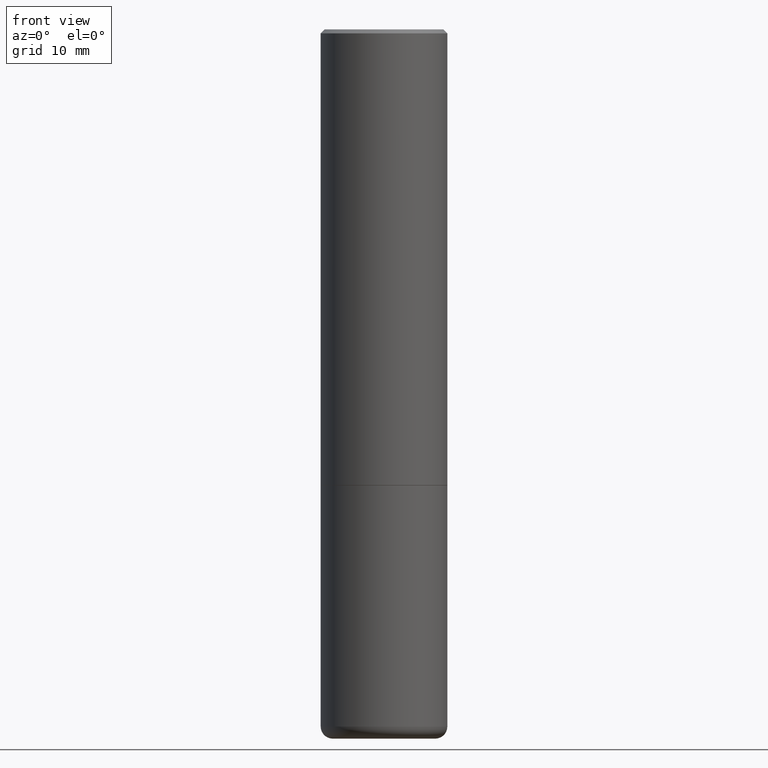
[diagram: clean part render]
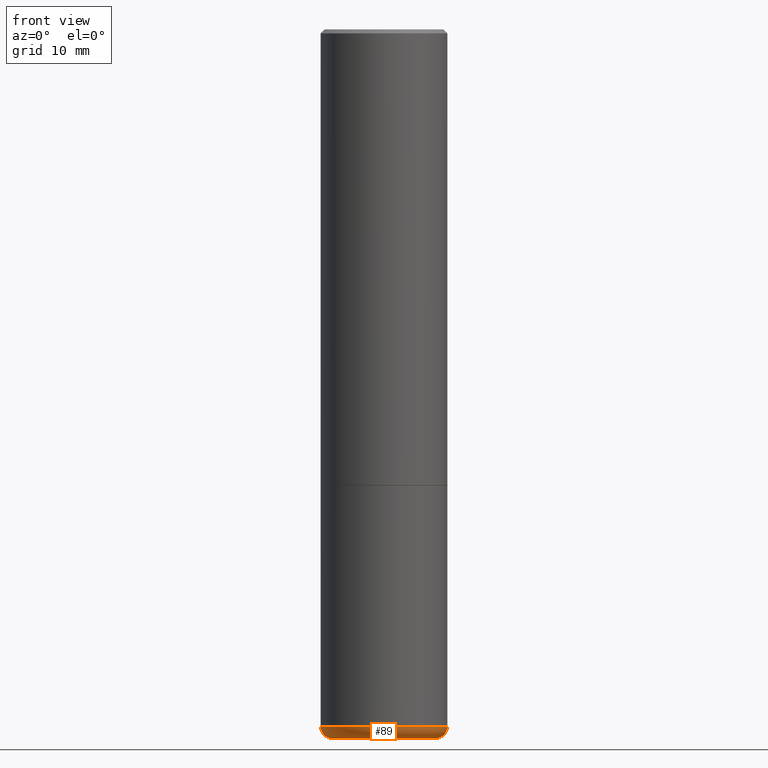
[diagram: same view with one face highlighted and labeled with its STEP entity id]
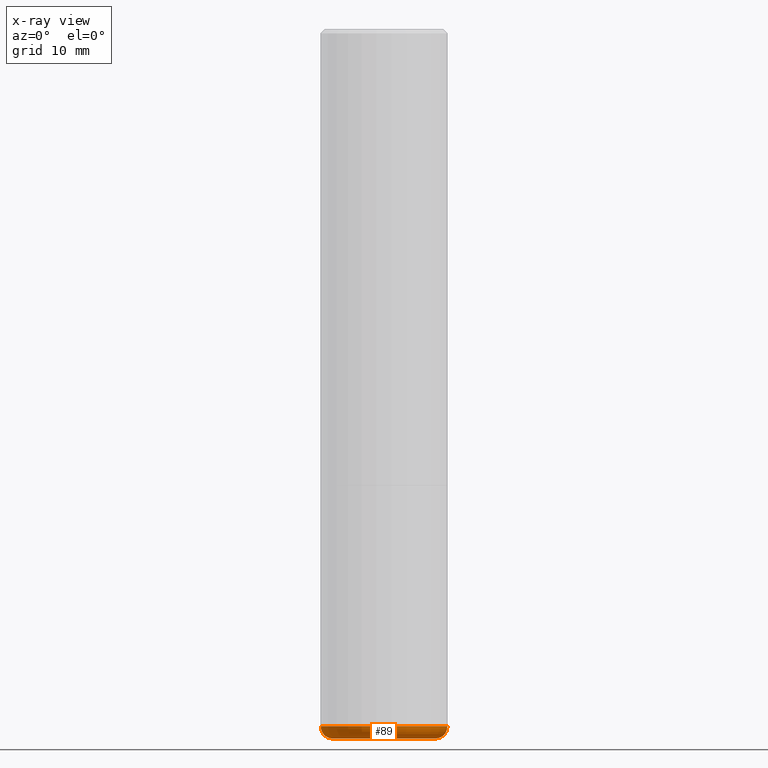
[diagram: x-ray of the same camera — body ghosted, the highlighted face saturated]
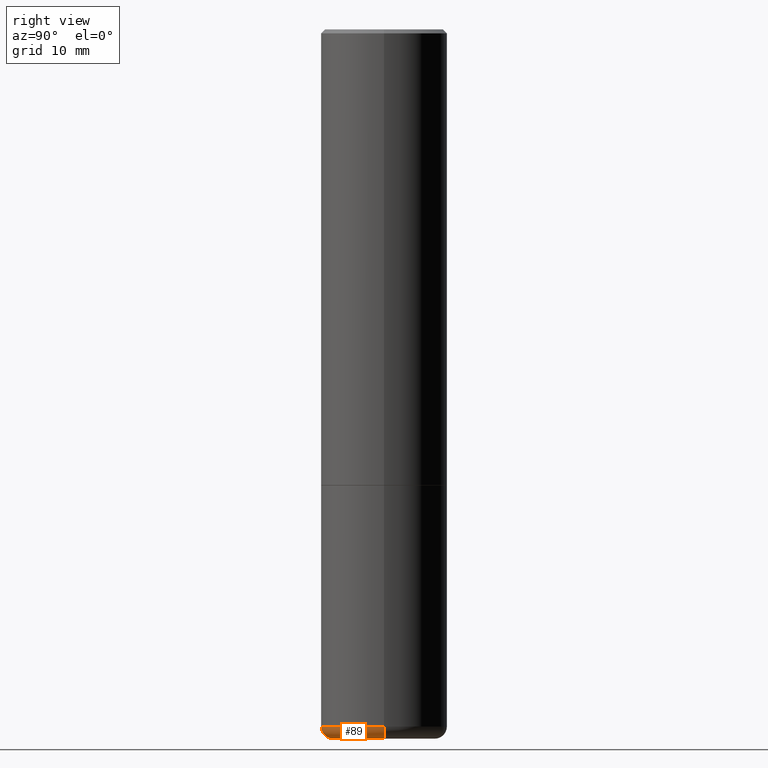
[diagram: same view with one face highlighted and labeled with its STEP entity id]
A machine part, front view. The second image highlights one B-rep face of the part: STEP entity #89.
The next image is the same camera in x-ray: the body ghosted, the highlighted face saturated — about 0% of this face is hidden behind the body in this view.
A second angle (right view) of the same face is appended — the face is thin or edge-on in the first view.
In plain terms, the highlighted toroidal blend (fillet) surface has major radius 6.4135 mm and minor (blend) radius 1.524 mm.
Its self-contained STEP definition (entity closure, byte-faithful):
#10 = CARTESIAN_POINT ( 'NONE',  ( -0.2525000000000000022, -1.010815701726343156E-14, -3.500000000000000000 ) ) ;
#20 = VERTEX_POINT ( 'NONE', #154 ) ;
#45 = FACE_OUTER_BOUND ( 'NONE', #291, .T. ) ;
#61 = ORIENTED_EDGE ( 'NONE', *, *, #103, .T. ) ;
#63 = CARTESIAN_POINT ( 'NONE',  ( -0.2525000000000000022, -1.021657539782616686E-14, -3.439999999999999947 ) ) ;
#67 = AXIS2_PLACEMENT_3D ( 'NONE', #63, #400, #347 ) ;
#68 = CIRCLE ( 'NONE', #94, 0.3125000000000000000 ) ;
#89 = ADVANCED_FACE ( 'NONE', ( #45 ), #252, .T. ) ;
#94 = AXIS2_PLACEMENT_3D ( 'NONE', #201, #308, #348 ) ;
#103 = EDGE_CURVE ( 'NONE', #330, #20, #304, .T. ) ;
#119 = CIRCLE ( 'NONE', #67, 0.05999999999999994227 ) ;
#121 = CARTESIAN_POINT ( 'NONE',  ( 0.2525000000000000022, -1.377389388173620432E-14, -3.439999999999999947 ) ) ;
#122 = VERTEX_POINT ( 'NONE', #227 ) ;
#127 = DIRECTION ( 'NONE',  ( -2.445468806185136597E-29, 3.491481338843145583E-15, 1.000000000000000000 ) ) ;
#150 = EDGE_CURVE ( 'NONE', #281, #122, #119, .T. ) ;
#154 = CARTESIAN_POINT ( 'NONE',  ( 0.3125000000000000000, -1.419287164239737937E-14, -3.439999999999999947 ) ) ;
#158 = ORIENTED_EDGE ( 'NONE', *, *, #150, .F. ) ;
#176 = CARTESIAN_POINT ( 'NONE',  ( 0.2525000000000000022, -1.398338276206679106E-14, -3.500000000000000000 ) ) ;
#180 = DIRECTION ( 'NONE',  ( -2.445468806185136597E-29, 3.491481338843145583E-15, 1.000000000000000000 ) ) ;
#199 = EDGE_CURVE ( 'NONE', #281, #330, #372, .T. ) ;
#201 = CARTESIAN_POINT ( 'NONE',  ( 8.412412693276869938E-29, -1.201069580562042103E-14, -3.439999999999999947 ) ) ;
#213 = AXIS2_PLACEMENT_3D ( 'NONE', #374, #180, #407 ) ;
#214 = AXIS2_PLACEMENT_3D ( 'NONE', #289, #127, #412 ) ;
#222 = ORIENTED_EDGE ( 'NONE', *, *, #401, .F. ) ;
#227 = CARTESIAN_POINT ( 'NONE',  ( -0.3125000000000000000, -9.790249756370107944E-15, -3.439999999999999947 ) ) ;
#243 = ORIENTED_EDGE ( 'NONE', *, *, #199, .T. ) ;
#245 = DIRECTION ( 'NONE',  ( 1.000000000000000000, -6.982962677686274599E-15, 0.000000000000000000 ) ) ;
#252 = TOROIDAL_SURFACE ( 'NONE', #213, 0.2525000000000000022, 0.05999999999999995615 ) ;
#279 = DIRECTION ( 'NONE',  ( -6.982962677686266711E-15, -1.000000000000000000, 3.491481338843145583E-15 ) ) ;
#281 = VERTEX_POINT ( 'NONE', #10 ) ;
#289 = CARTESIAN_POINT ( 'NONE',  ( 8.559140821647976968E-29, -1.222018468595100934E-14, -3.500000000000000000 ) ) ;
#291 = EDGE_LOOP ( 'NONE', ( #158, #243, #61, #222 ) ) ;
#304 = CIRCLE ( 'NONE', #317, 0.05999999999999994227 ) ;
#308 = DIRECTION ( 'NONE',  ( -2.445468806185136597E-29, 3.491481338843145583E-15, 1.000000000000000000 ) ) ;
#317 = AXIS2_PLACEMENT_3D ( 'NONE', #121, #279, #245 ) ;
#330 = VERTEX_POINT ( 'NONE', #176 ) ;
#347 = DIRECTION ( 'NONE',  ( -1.000000000000000000, 7.105427357600997914E-15, 0.000000000000000000 ) ) ;
#348 = DIRECTION ( 'NONE',  ( 1.000000000000000000, -6.982962677686269077E-15, 0.000000000000000000 ) ) ;
#372 = CIRCLE ( 'NONE', #214, 0.2525000000000000022 ) ;
#374 = CARTESIAN_POINT ( 'NONE',  ( 8.412412693276869938E-29, -1.201069580562042103E-14, -3.439999999999999947 ) ) ;
#400 = DIRECTION ( 'NONE',  ( 7.105427357601001859E-15, 1.000000000000000000, -3.491481338843145583E-15 ) ) ;
#401 = EDGE_CURVE ( 'NONE', #122, #20, #68, .T. ) ;
#407 = DIRECTION ( 'NONE',  ( 1.000000000000000000, -6.982962677686264344E-15, 4.883557194083112340E-29 ) ) ;
#412 = DIRECTION ( 'NONE',  ( 1.000000000000000000, -6.982962677686269866E-15, 0.000000000000000000 ) ) ;